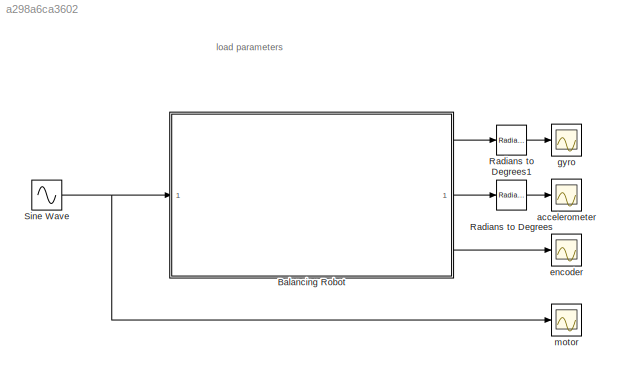
MODEL slx_a298a6ca3602
KIND model
CONFIG AbsTol = auto
CONFIG EnableMultiTasking = on
CONFIG FixedStep = auto
CONFIG MaxStep = auto
CONFIG MinStep = auto
CONFIG RelTol = 1e-3
CONFIG SampleTimeConstraint = Unconstrained
CONFIG SolverName = ode45
CONFIG StartTime = 0.0
CONFIG StopTime = 10.0
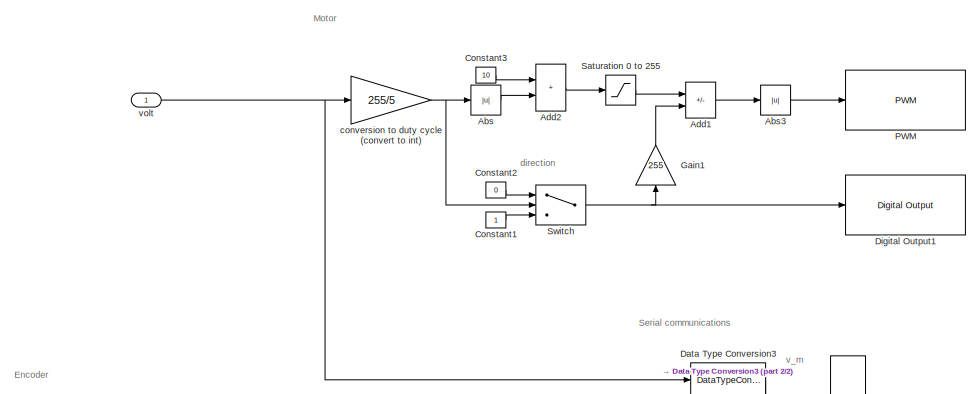
[diagram: Balancing Robot - part 1/2, top left region]
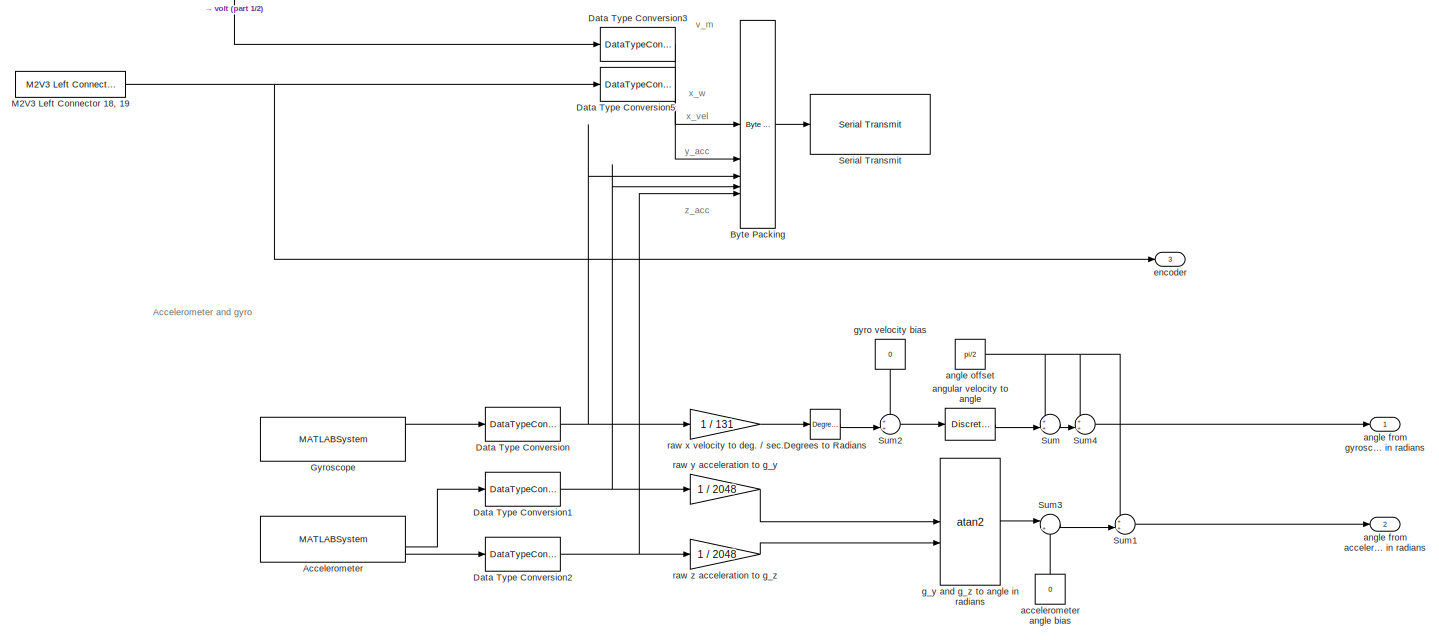
[diagram: Balancing Robot - part 2/2, full width, bottom band]
BLOCK [SubSystem] Balancing Robot
BLOCK [Abs] Balancing Robot/Abs
  SaturateOnIntegerOverflow = off
BLOCK [Abs] Balancing Robot/Abs3
  SaturateOnIntegerOverflow = off
BLOCK [MATLABSystem] Balancing Robot/Accelerometer
  MaskType = soMPU6050Accel
  SimulateUsing = Code generation
  System = soMPU6050Accel
BLOCK [Sum] Balancing Robot/Add1
  IconShape = rectangular
  Inputs = -+
BLOCK [Sum] Balancing Robot/Add2
  IconShape = rectangular
BLOCK [Reference] Balancing Robot/Byte Packing   REF=xpcutilitieslib/Byte Packing 
  Commented = on
  SourceBlock = xpcutilitieslib/Byte Packing
  SourceProductName = Simulink Real-Time
  SourceType = xpcbytepacking
BLOCK [Constant] Balancing Robot/Constant1
BLOCK [Constant] Balancing Robot/Constant2
  Value = 0
BLOCK [Constant] Balancing Robot/Constant3
  Value = 10
BLOCK [DataTypeConversion] Balancing Robot/Data Type Conversion
  OutDataTypeStr = double
  RndMeth = Floor
  SaturateOnIntegerOverflow = off
BLOCK [DataTypeConversion] Balancing Robot/Data Type Conversion1
  OutDataTypeStr = double
  RndMeth = Floor
  SaturateOnIntegerOverflow = off
BLOCK [DataTypeConversion] Balancing Robot/Data Type Conversion2
  OutDataTypeStr = double
  RndMeth = Floor
  SaturateOnIntegerOverflow = off
BLOCK [DataTypeConversion] Balancing Robot/Data Type Conversion3
  Commented = on
  OutDataTypeStr = single
  RndMeth = Floor
  SaturateOnIntegerOverflow = off
BLOCK [DataTypeConversion] Balancing Robot/Data Type Conversion5
  Commented = on
  OutDataTypeStr = double
  RndMeth = Floor
  SaturateOnIntegerOverflow = off
BLOCK [Reference] Balancing Robot/Degrees to Radians  REF=simulink_extras/Transformations/Degrees to
Radians
  SourceBlock = simulink_extras/Transformations/Degrees to\nRadians
  SourceType = DegreesToRadians
BLOCK [Reference] Balancing Robot/Digital Output1  REF=arduinolib/Digital Output
  SourceBlock = arduinolib/Digital Output
  SourceType = Arduino Digital Output
BLOCK [Gain] Balancing Robot/Gain1
  Gain = 255
  NameLocation = right
BLOCK [MATLABSystem] Balancing Robot/Gyroscope
  DLPFmode = 0
  MaskType = soMPU6050Gyro
  System = soMPU6050Gyro
BLOCK [Reference] Balancing Robot/M2V3 Left Connector 18, 19  REF=MinSegLibrary_M2V3/M2V3 Left Connector 18, 19
  SourceBlock = MinSegLibrary_M2V3/M2V3 Left Connector 18, 19
  SourceProductName = M2V3.2 Library
  SourceType = Encoder_arduino
BLOCK [Reference] Balancing Robot/PWM  REF=arduinolib/PWM
  SourceBlock = arduinolib/PWM
  SourceType = Arduino PWM
BLOCK [Saturate] Balancing Robot/Saturation 0 to 255
  LowerLimit = 0
  UpperLimit = 255
BLOCK [Reference] Balancing Robot/Serial Transmit  REF=arduinolib/Serial Transmit
  Commented = on
  SourceBlock = arduinolib/Serial Transmit
  SourceProductName = Simulink Support Package for Arduino Hardware
  SourceType = Arduino Serial Transmit
BLOCK [Sum] Balancing Robot/Sum
  Inputs = ++|
BLOCK [Sum] Balancing Robot/Sum1
  Inputs = ++|
BLOCK [Sum] Balancing Robot/Sum2
  Inputs = ++|
BLOCK [Sum] Balancing Robot/Sum3
  Inputs = |++
BLOCK [Sum] Balancing Robot/Sum4
  Inputs = ++|
BLOCK [Switch] Balancing Robot/Switch
  InputSameDT = off
  SaturateOnIntegerOverflow = off
BLOCK [Constant] Balancing Robot/accelerometer angle bias
  NameLocation = right
  Value = 0
BLOCK [Outport] Balancing Robot/angle from accelerometer in radians
  Port = 2
BLOCK [Outport] Balancing Robot/angle from gyroscope in radians
BLOCK [Constant] Balancing Robot/angle offset
  Value = pi/2
BLOCK [DiscreteIntegrator] Balancing Robot/angular velocity to angle
  ICPrevOutput = DiscIntNeverNeededParam
  ICPrevScaledInput = DiscIntNeverNeededParam
  InitialConditionSetting = Auto
  SampleTime = -1
BLOCK [Gain] Balancing Robot/conversion to duty cycle (convert to int)
  Gain = 255/5
  OutDataTypeStr = int16
BLOCK [Outport] Balancing Robot/encoder
  Port = 3
BLOCK [Trigonometry] Balancing Robot/g_y and g_z to angle in radians
  Operator = atan2
BLOCK [Constant] Balancing Robot/gyro velocity bias
  NameLocation = left
  Value = 0
BLOCK [Gain] Balancing Robot/raw x velocity to deg. // sec.
  Gain = 1 / 131
BLOCK [Gain] Balancing Robot/raw y acceleration to g_y
  Gain = 1 / 2048
BLOCK [Gain] Balancing Robot/raw z acceleration to g_z
  Gain = 1 / 2048
BLOCK [Inport] Balancing Robot/volt
BLOCK [Reference] Radians to Degrees  REF=simulink_extras/Transformations/Radians
to Degrees
  SourceBlock = simulink_extras/Transformations/Radians\nto Degrees
  SourceType = RadiansToDegrees
BLOCK [Reference] Radians to Degrees1  REF=simulink_extras/Transformations/Radians
to Degrees
  SourceBlock = simulink_extras/Transformations/Radians\nto Degrees
  SourceType = RadiansToDegrees
BLOCK [Sin] Sine Wave
  Frequency = 5
  SampleTime = fSamplingPeriod
BLOCK [Scope] accelerometer
  ActiveDisplayYMaximum = 30
  ActiveDisplayYMinimum = -45
  DataLogging = on
  DataLoggingDecimateData = on
  DataLoggingDecimation = 1
  DataLoggingSaveFormat = Structure With Time
  DataLoggingVariableName = tAngleFromAccelerometer
  Floating = off
  GraphicalSettings = {"GraphicalSettings":{"LegacySettings":true,"Style":{"AxesScalingProperties":{"ScaleAxesLimitsAtStop":false},"Style":{"AxesColor":"[0 0 0]","ChannelNames":[""],"ColorOrder":"[1 1 0.0666666666666667;0.0745098039215686 0.623529411764706 1;1 0.411764705882353 0.16078431372549;0.392156862745098 0.831372549019608 0.0745098039215686;0.717647058823529 0.274509803921569 1;0.0588235294117647 1 1;1 0.074509...<+399ch>  <repeated x4 — deduplicated; at blocks: accelerometer, encoder, gyro, motor>
  MultipleDisplayCache = [{"MaxYLimMag":10,"MaxYLimReal":30,"MinYLimMag":0,"MinYLimReal":-45,"PlotAsMagnitudePhase":false,"ShowGrid":true,"ShowLegend":false,"Title":"%<SignalLabel>","YLabel":""}]
  NumInputPorts = 1
  WasSavedAsWebScope = on
BLOCK [Scope] encoder
  ActiveDisplayYMaximum = -125.75
  ActiveDisplayYMinimum = -268.25
  DataLogging = on
  DataLoggingDecimateData = on
  DataLoggingDecimation = 1
  DataLoggingSaveFormat = Structure With Time
  DataLoggingVariableName = tEncoder
  Floating = off
  MultipleDisplayCache = [{"MaxYLimMag":268.25,"MaxYLimReal":-125.75,"MinYLimMag":0,"MinYLimReal":-268.25,"PlotAsMagnitudePhase":false,"ShowGrid":true,"ShowLegend":false,"Title":"%<SignalLabel>","YLabel":""}]
  NumInputPorts = 1
  TimeSpan = 10
  WasSavedAsWebScope = on
BLOCK [Scope] gyro
  ActiveDisplayYMaximum = 26.00492
  ActiveDisplayYMinimum = 16.70976
  DataLogging = on
  DataLoggingDecimateData = on
  DataLoggingDecimation = 1
  DataLoggingSaveFormat = Structure With Time
  DataLoggingVariableName = tAngleFromGyro
  Floating = off
  MultipleDisplayCache = [{"MaxYLimMag":26.00492,"MaxYLimReal":26.00492,"MinYLimMag":16.70976,"MinYLimReal":16.70976,"PlotAsMagnitudePhase":false,"ShowGrid":true,"ShowLegend":false,"Title":"%<SignalLabel>","YLabel":""}]
  NumInputPorts = 1
  WasSavedAsWebScope = on
BLOCK [Scope] motor
  ActiveDisplayYMaximum = 1
  ActiveDisplayYMinimum = -1
  DataLogging = on
  DataLoggingDecimateData = on
  DataLoggingDecimation = 1
  DataLoggingSaveFormat = Structure With Time
  DataLoggingVariableName = tMotor
  Floating = off
  MultipleDisplayCache = [{"MaxYLimMag":10,"MaxYLimReal":1,"MinYLimMag":0,"MinYLimReal":-1,"PlotAsMagnitudePhase":false,"ShowGrid":true,"ShowLegend":false,"Title":"%<SignalLabel>","YLabel":""}]
  NumInputPorts = 1
  WasSavedAsWebScope = on
ANNOTATION (root): load parameters
ANNOTATION Balancing Robot: Accelerometer and gyro
ANNOTATION Balancing Robot: Encoder
ANNOTATION Balancing Robot: Motor
ANNOTATION Balancing Robot: Serial communications
ANNOTATION Balancing Robot: direction
ANNOTATION Balancing Robot: v_m
ANNOTATION Balancing Robot: x_vel
ANNOTATION Balancing Robot: x_w
ANNOTATION Balancing Robot: y_acc
ANNOTATION Balancing Robot: z_acc
LINE Balancing Robot/Abs3:1 -> Balancing Robot/PWM:1
LINE Balancing Robot/Abs:1 -> Balancing Robot/Add2:2
LINE Balancing Robot/Accelerometer:2 -> Balancing Robot/Data Type Conversion1:1
LINE Balancing Robot/Accelerometer:3 -> Balancing Robot/Data Type Conversion2:1
LINE Balancing Robot/Add1:1 -> Balancing Robot/Abs3:1
LINE Balancing Robot/Add2:1 -> Balancing Robot/Saturation 0 to 255:1
LINE Balancing Robot/Byte Packing :1 -> Balancing Robot/Serial Transmit:1
LINE Balancing Robot/Constant1:1 -> Balancing Robot/Switch:3
LINE Balancing Robot/Constant2:1 -> Balancing Robot/Switch:1
LINE Balancing Robot/Constant3:1 -> Balancing Robot/Add2:1
NET Balancing Robot/Data Type Conversion1:1 -> Balancing Robot/Byte Packing :4, Balancing Robot/raw y acceleration to g_y:1
NET Balancing Robot/Data Type Conversion2:1 -> Balancing Robot/Byte Packing :5, Balancing Robot/raw z acceleration to g_z:1
LINE Balancing Robot/Data Type Conversion3:1 -> Balancing Robot/Byte Packing :1
LINE Balancing Robot/Data Type Conversion5:1 -> Balancing Robot/Byte Packing :2
NET Balancing Robot/Data Type Conversion:1 -> Balancing Robot/Byte Packing :3, Balancing Robot/raw x velocity to deg. // sec.:1
LINE Balancing Robot/Degrees to Radians:1 -> Balancing Robot/Sum2:2
LINE Balancing Robot/Gain1:1 -> Balancing Robot/Add1:2
LINE Balancing Robot/Gyroscope:1 -> Balancing Robot/Data Type Conversion:1
NET Balancing Robot/M2V3 Left Connector 18, 19:1 -> Balancing Robot/Data Type Conversion5:1, Balancing Robot/encoder:1
LINE Balancing Robot/Saturation 0 to 255:1 -> Balancing Robot/Add1:1
LINE Balancing Robot/Sum1:1 -> Balancing Robot/angle from accelerometer in radians:1
LINE Balancing Robot/Sum2:1 -> Balancing Robot/angular velocity to angle:1
LINE Balancing Robot/Sum3:1 -> Balancing Robot/Sum1:2
LINE Balancing Robot/Sum4:1 -> Balancing Robot/angle from gyroscope in radians:1
LINE Balancing Robot/Sum:1 -> Balancing Robot/Sum4:2
NET Balancing Robot/Switch:1 -> Balancing Robot/Digital Output1:1, Balancing Robot/Gain1:1
LINE Balancing Robot/accelerometer angle bias:1 -> Balancing Robot/Sum3:2
NET Balancing Robot/angle offset:1 -> Balancing Robot/Sum1:1, Balancing Robot/Sum4:1, Balancing Robot/Sum:1
LINE Balancing Robot/angular velocity to angle:1 -> Balancing Robot/Sum:2
NET Balancing Robot/conversion to duty cycle (convert to int):1 -> Balancing Robot/Abs:1, Balancing Robot/Switch:2
LINE Balancing Robot/g_y and g_z to angle in radians:1 -> Balancing Robot/Sum3:1
LINE Balancing Robot/gyro velocity bias:1 -> Balancing Robot/Sum2:1
LINE Balancing Robot/raw x velocity to deg. // sec.:1 -> Balancing Robot/Degrees to Radians:1
LINE Balancing Robot/raw y acceleration to g_y:1 -> Balancing Robot/g_y and g_z to angle in radians:1
LINE Balancing Robot/raw z acceleration to g_z:1 -> Balancing Robot/g_y and g_z to angle in radians:2
NET Balancing Robot/volt:1 -> Balancing Robot/Data Type Conversion3:1, Balancing Robot/conversion to duty cycle (convert to int):1
LINE Balancing Robot:1 -> Radians to Degrees1:1
LINE Balancing Robot:2 -> Radians to Degrees:1
LINE Balancing Robot:3 -> encoder:1
LINE Radians to Degrees1:1 -> gyro:1
LINE Radians to Degrees:1 -> accelerometer:1
NET Sine Wave:1 -> Balancing Robot:1, motor:1
note: NET lines group one-source signal fan-out (src -> all destinations, sorted); 1:1 wires keep LINE
